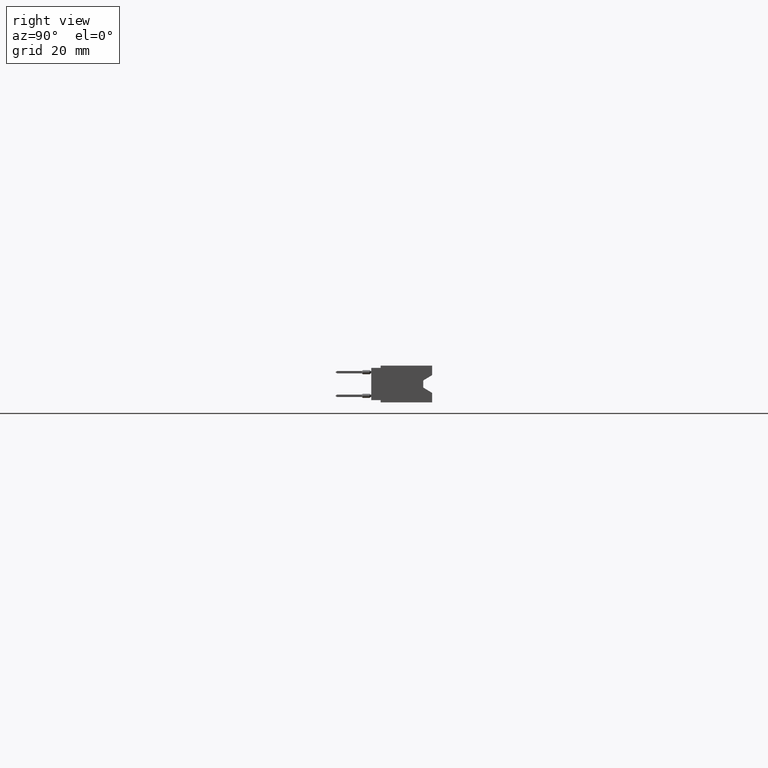
[diagram: clean part render]
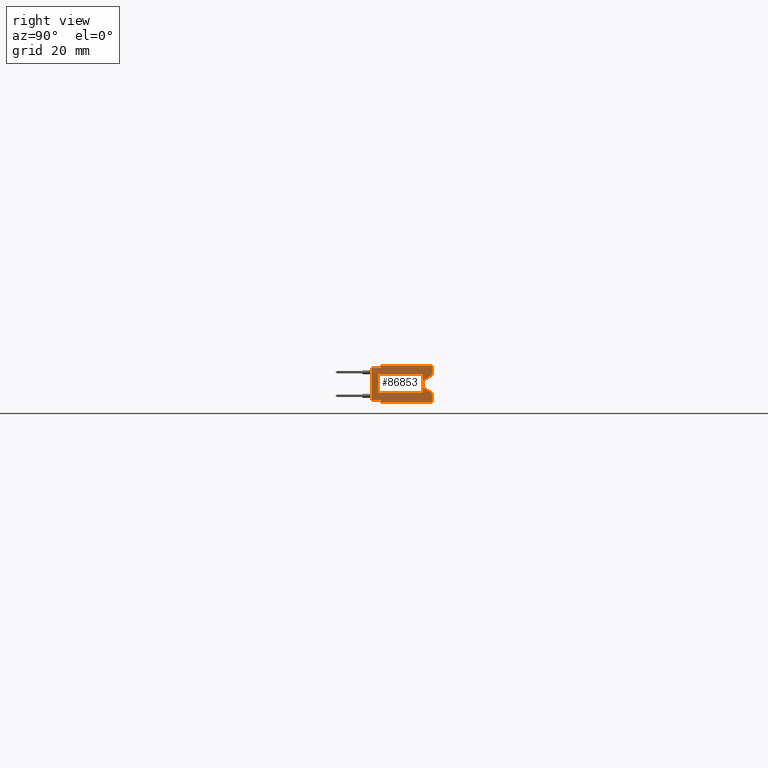
[diagram: same view with one face highlighted and labeled with its STEP entity id]
A machine part, right view. The second image highlights one B-rep face of the part: STEP entity #86853.
In plain terms, the highlighted planar face has unit normal (-1, 0, 0).
Its self-contained STEP definition (entity closure, byte-faithful):
#1039 = LINE ( 'NONE', #20818, #17170 ) ;
#1172 = LINE ( 'NONE', #1610, #23472 ) ;
#1610 = CARTESIAN_POINT ( 'NONE',  ( 7.660000000000000142, 0.5499999999999999334, -0.2320000000000000395 ) ) ;
#1702 = EDGE_CURVE ( 'NONE', #49112, #38737, #82687, .T. ) ;
#2683 = EDGE_LOOP ( 'NONE', ( #45437, #6350, #88190, #43953, #12196, #50416, #69271, #39593, #5483, #86973, #66341, #7490 ) ) ;
#3403 = EDGE_CURVE ( 'NONE', #9587, #12687, #50897, .T. ) ;
#3645 = CARTESIAN_POINT ( 'NONE',  ( 7.660000000000000142, 0.6449999999999999067, 0.0000000000000000000 ) ) ;
#5483 = ORIENTED_EDGE ( 'NONE', *, *, #80676, .F. ) ;
#6350 = ORIENTED_EDGE ( 'NONE', *, *, #84441, .F. ) ;
#6915 = DIRECTION ( 'NONE',  ( 0.0000000000000000000, 1.000000000000000000, 0.0000000000000000000 ) ) ;
#7490 = ORIENTED_EDGE ( 'NONE', *, *, #3403, .F. ) ;
#9503 = LINE ( 'NONE', #36886, #51971 ) ;
#9587 = VERTEX_POINT ( 'NONE', #61391 ) ;
#10797 = VECTOR ( 'NONE', #71894, 39.37007874015748143 ) ;
#11097 = LINE ( 'NONE', #52343, #29130 ) ;
#12196 = ORIENTED_EDGE ( 'NONE', *, *, #79007, .T. ) ;
#12687 = VERTEX_POINT ( 'NONE', #37246 ) ;
#12939 = DIRECTION ( 'NONE',  ( 0.0000000000000000000, 0.0000000000000000000, -1.000000000000000000 ) ) ;
#16853 = VERTEX_POINT ( 'NONE', #54087 ) ;
#17133 = DIRECTION ( 'NONE',  ( 0.0000000000000000000, 0.0000000000000000000, -1.000000000000000000 ) ) ;
#17170 = VECTOR ( 'NONE', #48170, 39.37007874015748143 ) ;
#17190 = CARTESIAN_POINT ( 'NONE',  ( 7.660000000000000142, 0.6449999999999999067, 0.0000000000000000000 ) ) ;
#18273 = LINE ( 'NONE', #38028, #50625 ) ;
#20377 = LINE ( 'NONE', #61653, #83318 ) ;
#20818 = CARTESIAN_POINT ( 'NONE',  ( 7.660000000000000142, 0.6449999999999999067, -0.3900000000000000133 ) ) ;
#22854 = CARTESIAN_POINT ( 'NONE',  ( 7.660000000000000142, 0.1000000000000000056, -0.3649999999999999911 ) ) ;
#23223 = VERTEX_POINT ( 'NONE', #37645 ) ;
#23472 = VECTOR ( 'NONE', #50057, 39.37007874015748854 ) ;
#23780 = CARTESIAN_POINT ( 'NONE',  ( 7.660000000000000142, 0.6449999999999999067, -0.3900000000000000133 ) ) ;
#24537 = DIRECTION ( 'NONE',  ( 0.0000000000000000000, 0.0000000000000000000, -1.000000000000000000 ) ) ;
#29058 = VECTOR ( 'NONE', #17133, 39.37007874015748143 ) ;
#29130 = VECTOR ( 'NONE', #79706, 39.37007874015748854 ) ;
#31876 = EDGE_CURVE ( 'NONE', #12687, #79762, #1172, .T. ) ;
#33566 = CARTESIAN_POINT ( 'NONE',  ( 7.660000000000000142, 0.1000000000000000056, 0.0000000000000000000 ) ) ;
#35365 = EDGE_CURVE ( 'NONE', #69048, #49112, #78643, .T. ) ;
#36886 = CARTESIAN_POINT ( 'NONE',  ( 7.660000000000000142, 0.1000000000000000056, -0.3900000000000000133 ) ) ;
#37246 = CARTESIAN_POINT ( 'NONE',  ( 7.660000000000000142, 0.5499999999999999334, -0.2320000000000000395 ) ) ;
#37645 = CARTESIAN_POINT ( 'NONE',  ( 7.660000000000000142, 0.1000000000000000056, -0.3900000000000000133 ) ) ;
#38028 = CARTESIAN_POINT ( 'NONE',  ( 7.660000000000000142, 0.6449999999999999067, 0.0000000000000000000 ) ) ;
#38737 = VERTEX_POINT ( 'NONE', #43476 ) ;
#38972 = EDGE_CURVE ( 'NONE', #79762, #75892, #49887, .T. ) ;
#39052 = EDGE_CURVE ( 'NONE', #54571, #23223, #9503, .T. ) ;
#39593 = ORIENTED_EDGE ( 'NONE', *, *, #39052, .T. ) ;
#41104 = LINE ( 'NONE', #68461, #64229 ) ;
#41497 = EDGE_CURVE ( 'NONE', #16853, #57016, #73301, .T. ) ;
#43167 = DIRECTION ( 'NONE',  ( -1.000000000000000000, 0.0000000000000000000, 0.0000000000000000000 ) ) ;
#43476 = CARTESIAN_POINT ( 'NONE',  ( 7.660000000000000142, 0.1000000000000000056, -0.02500000000000000486 ) ) ;
#43953 = ORIENTED_EDGE ( 'NONE', *, *, #1702, .T. ) ;
#45437 = ORIENTED_EDGE ( 'NONE', *, *, #84462, .F. ) ;
#48170 = DIRECTION ( 'NONE',  ( -0.0000000000000000000, -1.000000000000000000, -0.0000000000000000000 ) ) ;
#49112 = VERTEX_POINT ( 'NONE', #75705 ) ;
#49887 = LINE ( 'NONE', #64236, #29058 ) ;
#50057 = DIRECTION ( 'NONE',  ( 0.0000000000000000000, 0.8545023705661023428, -0.5194474936862353287 ) ) ;
#50416 = ORIENTED_EDGE ( 'NONE', *, *, #41497, .T. ) ;
#50625 = VECTOR ( 'NONE', #24537, 39.37007874015748143 ) ;
#50763 = DIRECTION ( 'NONE',  ( 0.0000000000000000000, 0.0000000000000000000, 1.000000000000000000 ) ) ;
#50897 = LINE ( 'NONE', #78261, #55206 ) ;
#51382 = VERTEX_POINT ( 'NONE', #72789 ) ;
#51971 = VECTOR ( 'NONE', #71393, 39.37007874015748143 ) ;
#52343 = CARTESIAN_POINT ( 'NONE',  ( 7.660000000000000142, 0.6449999999999999067, -0.1002500000000000058 ) ) ;
#52670 = CARTESIAN_POINT ( 'NONE',  ( 7.660000000000000142, 0.0000000000000000000, 0.0000000000000000000 ) ) ;
#54087 = CARTESIAN_POINT ( 'NONE',  ( 7.660000000000000142, 0.0000000000000000000, -0.02500000000000000486 ) ) ;
#54571 = VERTEX_POINT ( 'NONE', #22854 ) ;
#55044 = AXIS2_PLACEMENT_3D ( 'NONE', #3645, #43167, #50763 ) ;
#55206 = VECTOR ( 'NONE', #58073, 39.37007874015748143 ) ;
#55415 = DIRECTION ( 'NONE',  ( -0.0000000000000000000, -1.000000000000000000, -0.0000000000000000000 ) ) ;
#56683 = CARTESIAN_POINT ( 'NONE',  ( 7.660000000000000142, 0.0000000000000000000, -0.3649999999999999911 ) ) ;
#57016 = VERTEX_POINT ( 'NONE', #56683 ) ;
#57938 = FACE_OUTER_BOUND ( 'NONE', #2683, .T. ) ;
#58073 = DIRECTION ( 'NONE',  ( 0.0000000000000000000, 0.0000000000000000000, -1.000000000000000000 ) ) ;
#58850 = CARTESIAN_POINT ( 'NONE',  ( 7.660000000000000142, 0.6449999999999999067, -0.2897499999999999520 ) ) ;
#61391 = CARTESIAN_POINT ( 'NONE',  ( 7.660000000000000142, 0.5499999999999999334, -0.1580000000000000016 ) ) ;
#61653 = CARTESIAN_POINT ( 'NONE',  ( 7.660000000000000142, 0.0000000000000000000, -0.3649999999999999911 ) ) ;
#62185 = VECTOR ( 'NONE', #12939, 39.37007874015748143 ) ;
#64229 = VECTOR ( 'NONE', #55415, 39.37007874015748143 ) ;
#64231 = PLANE ( 'NONE',  #55044 ) ;
#64236 = CARTESIAN_POINT ( 'NONE',  ( 7.660000000000000142, 0.6449999999999999067, 0.0000000000000000000 ) ) ;
#66341 = ORIENTED_EDGE ( 'NONE', *, *, #31876, .F. ) ;
#66579 = VECTOR ( 'NONE', #67031, 39.37007874015748143 ) ;
#67031 = DIRECTION ( 'NONE',  ( 0.0000000000000000000, 0.0000000000000000000, -1.000000000000000000 ) ) ;
#67439 = EDGE_CURVE ( 'NONE', #57016, #54571, #20377, .T. ) ;
#68461 = CARTESIAN_POINT ( 'NONE',  ( 7.660000000000000142, 0.0000000000000000000, -0.02500000000000000486 ) ) ;
#69048 = VERTEX_POINT ( 'NONE', #75440 ) ;
#69271 = ORIENTED_EDGE ( 'NONE', *, *, #67439, .T. ) ;
#71393 = DIRECTION ( 'NONE',  ( -0.0000000000000000000, -0.0000000000000000000, -1.000000000000000000 ) ) ;
#71894 = DIRECTION ( 'NONE',  ( -0.0000000000000000000, -1.000000000000000000, -0.0000000000000000000 ) ) ;
#72789 = CARTESIAN_POINT ( 'NONE',  ( 7.660000000000000142, 0.6449999999999999067, -0.1002500000000000058 ) ) ;
#73301 = LINE ( 'NONE', #52670, #66579 ) ;
#75440 = CARTESIAN_POINT ( 'NONE',  ( 7.660000000000000142, 0.6449999999999999067, 0.0000000000000000000 ) ) ;
#75705 = CARTESIAN_POINT ( 'NONE',  ( 7.660000000000000142, 0.1000000000000000056, 0.0000000000000000000 ) ) ;
#75892 = VERTEX_POINT ( 'NONE', #23780 ) ;
#78261 = CARTESIAN_POINT ( 'NONE',  ( 7.660000000000000142, 0.5499999999999999334, -0.1580000000000000016 ) ) ;
#78643 = LINE ( 'NONE', #17190, #10797 ) ;
#79007 = EDGE_CURVE ( 'NONE', #38737, #16853, #41104, .T. ) ;
#79706 = DIRECTION ( 'NONE',  ( 0.0000000000000000000, -0.8545023705661021207, -0.5194474936862355507 ) ) ;
#79762 = VERTEX_POINT ( 'NONE', #58850 ) ;
#80676 = EDGE_CURVE ( 'NONE', #75892, #23223, #1039, .T. ) ;
#82687 = LINE ( 'NONE', #33566, #62185 ) ;
#83318 = VECTOR ( 'NONE', #6915, 39.37007874015748143 ) ;
#84441 = EDGE_CURVE ( 'NONE', #69048, #51382, #18273, .T. ) ;
#84462 = EDGE_CURVE ( 'NONE', #51382, #9587, #11097, .T. ) ;
#86853 = ADVANCED_FACE ( 'NONE', ( #57938 ), #64231, .F. ) ;
#86973 = ORIENTED_EDGE ( 'NONE', *, *, #38972, .F. ) ;
#88190 = ORIENTED_EDGE ( 'NONE', *, *, #35365, .T. ) ;